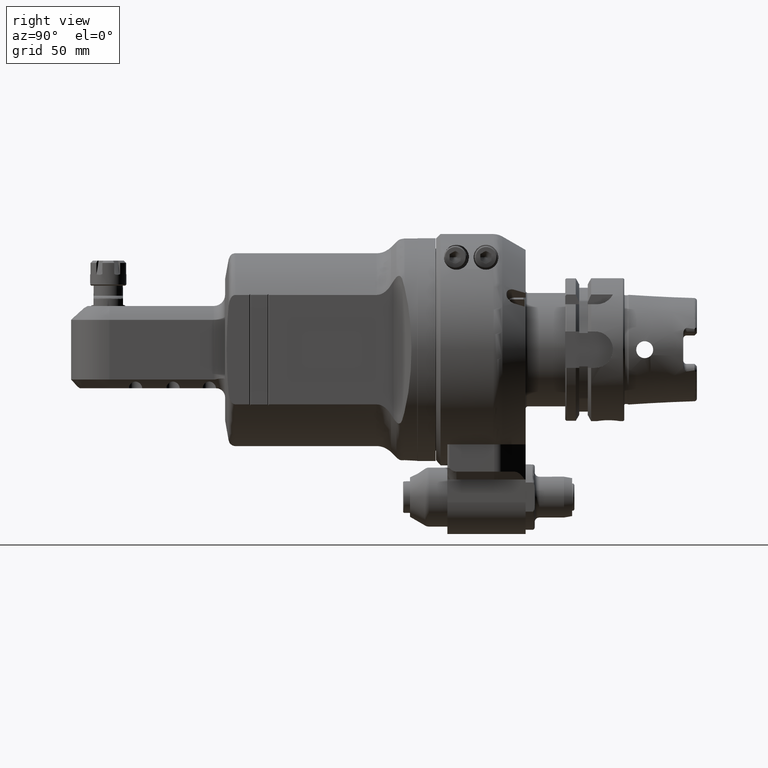
[diagram: clean part render]
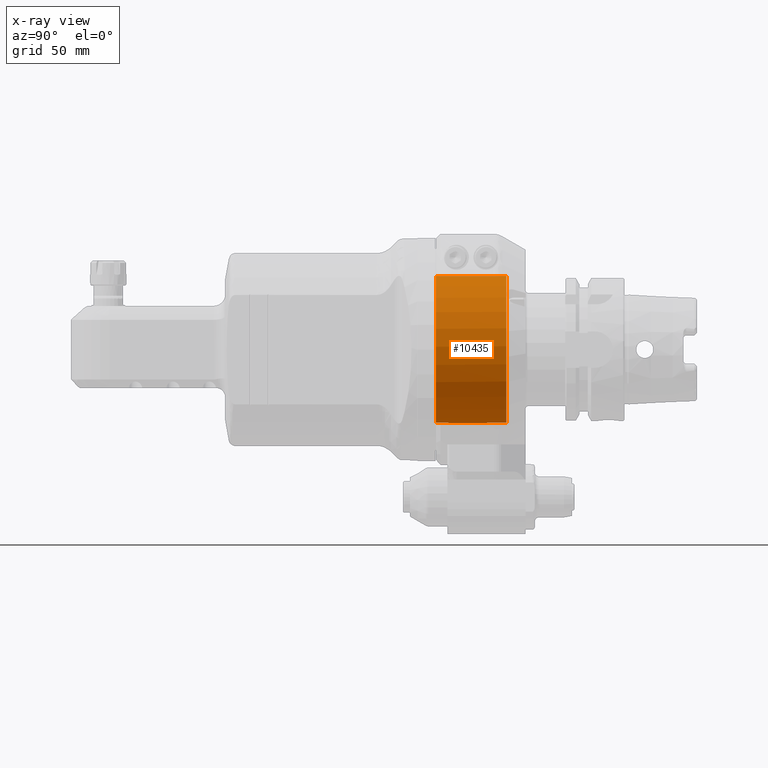
[diagram: x-ray — body ghosted, one internal face saturated and labeled with its STEP entity id]
A machine part, right view, then the same camera in x-ray: the body is ghosted and one INTERNAL B-rep face — a face not visible from any outside direction — is saturated and labeled: STEP entity #10435.
In plain terms, the highlighted cylindrical surface (partial cylindrical patch) has radius 32.5 mm, axis along (0, -1, 0).
Its self-contained STEP definition (entity closure, byte-faithful):
#841=CIRCLE('',#11333,32.5);
#842=CIRCLE('',#11335,32.5);
#843=CIRCLE('',#11336,32.5);
#844=CIRCLE('',#11337,32.5);
#1191=CYLINDRICAL_SURFACE('',#11334,32.5);
#1530=FACE_OUTER_BOUND('',#2197,.T.);
#2197=EDGE_LOOP('',(#7968,#7969,#7970,#7971,#7972,#7973,#7974,#7975));
#2911=LINE('',#17240,#3641);
#2916=LINE('',#17278,#3646);
#2917=LINE('',#17282,#3647);
#2918=LINE('',#17285,#3648);
#3641=VECTOR('',#13229,31.);
#3646=VECTOR('',#13246,31.);
#3647=VECTOR('',#13249,8.5);
#3648=VECTOR('',#13252,8.5);
#4503=VERTEX_POINT('',#17237);
#4504=VERTEX_POINT('',#17239);
#4511=VERTEX_POINT('',#17271);
#4512=VERTEX_POINT('',#17275);
#4513=VERTEX_POINT('',#17277);
#4514=VERTEX_POINT('',#17279);
#4515=VERTEX_POINT('',#17281);
#4516=VERTEX_POINT('',#17283);
#5756=EDGE_CURVE('',#4504,#4503,#2911,.T.);
#5765=EDGE_CURVE('',#4511,#4503,#841,.T.);
#5766=EDGE_CURVE('',#4504,#4512,#842,.T.);
#5767=EDGE_CURVE('',#4511,#4513,#2916,.T.);
#5768=EDGE_CURVE('',#4514,#4513,#843,.T.);
#5769=EDGE_CURVE('',#4514,#4515,#2917,.T.);
#5770=EDGE_CURVE('',#4516,#4515,#844,.T.);
#5771=EDGE_CURVE('',#4516,#4512,#2918,.T.);
#7968=ORIENTED_EDGE('',*,*,#5766,.F.);
#7969=ORIENTED_EDGE('',*,*,#5756,.T.);
#7970=ORIENTED_EDGE('',*,*,#5765,.F.);
#7971=ORIENTED_EDGE('',*,*,#5767,.T.);
#7972=ORIENTED_EDGE('',*,*,#5768,.F.);
#7973=ORIENTED_EDGE('',*,*,#5769,.T.);
#7974=ORIENTED_EDGE('',*,*,#5770,.F.);
#7975=ORIENTED_EDGE('',*,*,#5771,.T.);
#10435=ADVANCED_FACE('',(#1530),#1191,.F.);
#11333=AXIS2_PLACEMENT_3D('',#17273,#13240,#13241);
#11334=AXIS2_PLACEMENT_3D('',#17274,#13242,#13243);
#11335=AXIS2_PLACEMENT_3D('',#17276,#13244,#13245);
#11336=AXIS2_PLACEMENT_3D('',#17280,#13247,#13248);
#11337=AXIS2_PLACEMENT_3D('',#17284,#13250,#13251);
#13229=DIRECTION('',(0.,-1.,0.));
#13240=DIRECTION('center_axis',(0.,1.,0.));
#13241=DIRECTION('ref_axis',(0.0461538461538519,0.,0.998934343430642));
#13242=DIRECTION('center_axis',(0.,-1.,0.));
#13243=DIRECTION('ref_axis',(-1.22464679914735E-16,0.,-1.));
#13244=DIRECTION('center_axis',(0.,-1.,0.));
#13245=DIRECTION('ref_axis',(-0.0461538461538519,0.,0.998934343430642));
#13246=DIRECTION('',(0.,1.,0.));
#13247=DIRECTION('center_axis',(0.,-1.,0.));
#13248=DIRECTION('ref_axis',(0.1384615384615,0.,-0.990367811657303));
#13249=DIRECTION('',(0.,-1.,0.));
#13250=DIRECTION('center_axis',(0.,-1.,0.));
#13251=DIRECTION('ref_axis',(0.,0.,-1.));
#13252=DIRECTION('',(0.,1.,0.));
#17237=CARTESIAN_POINT('',(-1.5,0.,32.4653661615));
#17239=CARTESIAN_POINT('',(-1.5,31.,32.4653661615));
#17240=CARTESIAN_POINT('',(-1.5,31.,32.4653661615));
#17271=CARTESIAN_POINT('',(1.5,0.,32.4653661615));
#17273=CARTESIAN_POINT('Origin',(0.,0.,0.));
#17274=CARTESIAN_POINT('Origin',(0.,16.5,0.));
#17275=CARTESIAN_POINT('',(-4.5,31.,-32.18695387886));
#17276=CARTESIAN_POINT('Origin',(0.,31.,0.));
#17277=CARTESIAN_POINT('',(1.5,31.,32.4653661615));
#17278=CARTESIAN_POINT('',(1.5,0.,32.4653661615));
#17279=CARTESIAN_POINT('',(4.5,31.,-32.18695387886));
#17280=CARTESIAN_POINT('Origin',(0.,31.,0.));
#17281=CARTESIAN_POINT('',(4.5,22.5,-32.18695387886));
#17282=CARTESIAN_POINT('',(4.5,31.,-32.18695387886));
#17283=CARTESIAN_POINT('',(-4.5,22.5,-32.18695387886));
#17284=CARTESIAN_POINT('Origin',(0.,22.5,0.));
#17285=CARTESIAN_POINT('',(-4.5,22.5,-32.18695387886));